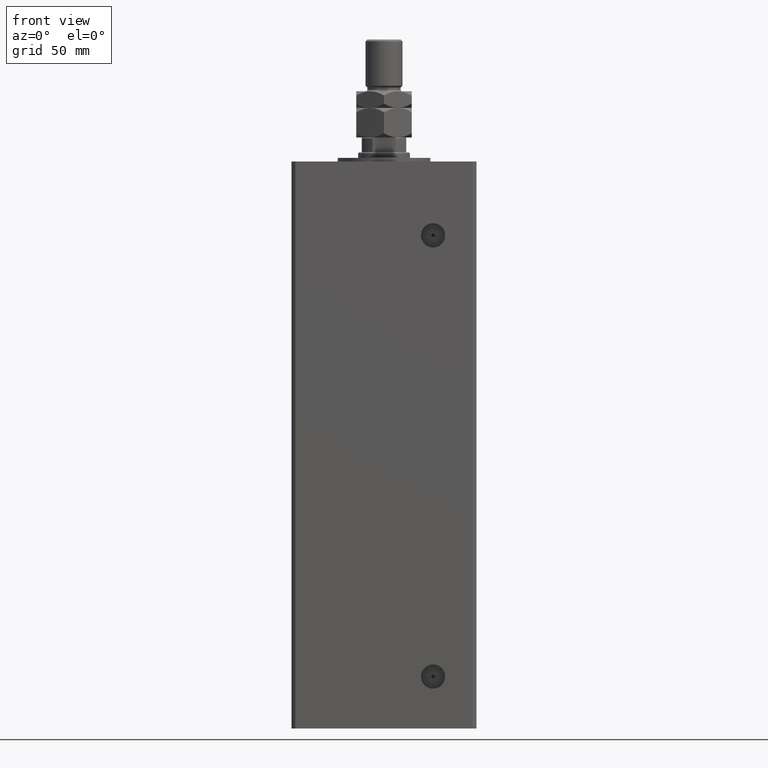
[diagram: clean part render]
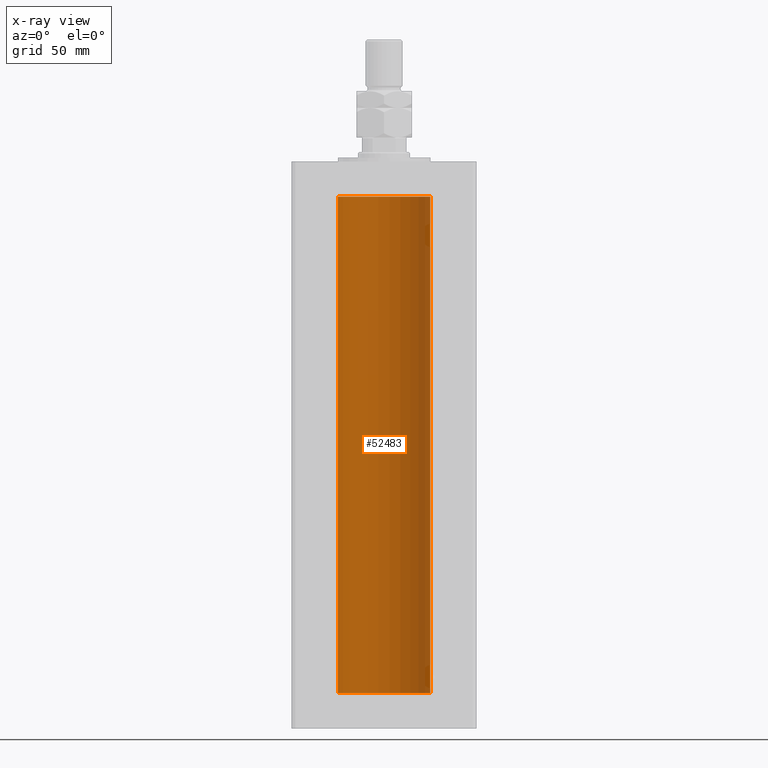
[diagram: x-ray — body ghosted, one internal face saturated and labeled with its STEP entity id]
A machine part, front view, then the same camera in x-ray: the body is ghosted and one INTERNAL B-rep face — a face not visible from any outside direction — is saturated and labeled: STEP entity #52483.
In plain terms, the highlighted cylindrical surface (partial cylindrical patch) has radius 25 mm, axis along (-0, -0, -1).
Its self-contained STEP definition (entity closure, byte-faithful):
#92 = EDGE_CURVE ( 'NONE', #16930, #14964, #46585, .T. ) ;
#3552 = EDGE_CURVE ( 'NONE', #43017, #11023, #37867, .T. ) ;
#3713 = ORIENTED_EDGE ( 'NONE', *, *, #35043, .F. ) ;
#4745 = VECTOR ( 'NONE', #25867, 1000.000000000000000 ) ;
#9135 = DIRECTION ( 'NONE',  ( -0.000000000000000000, 0.000000000000000000, 1.000000000000000000 ) ) ;
#9549 = CARTESIAN_POINT ( 'NONE',  ( -25.00000000000000000, 0.000000000000000000, 268.5000000000000000 ) ) ;
#10500 = FACE_OUTER_BOUND ( 'NONE', #14019, .T. ) ;
#11023 = VERTEX_POINT ( 'NONE', #38722 ) ;
#13814 = ORIENTED_EDGE ( 'NONE', *, *, #92, .F. ) ;
#14019 = EDGE_LOOP ( 'NONE', ( #3713, #49092, #26672, #13814 ) ) ;
#14431 = AXIS2_PLACEMENT_3D ( 'NONE', #52352, #52618, #43910 ) ;
#14494 = CARTESIAN_POINT ( 'NONE',  ( 25.00000000000000000, 3.061616997868383043E-15, 268.5000000000000000 ) ) ;
#14964 = VERTEX_POINT ( 'NONE', #22835 ) ;
#16930 = VERTEX_POINT ( 'NONE', #26369 ) ;
#17580 = CARTESIAN_POINT ( 'NONE',  ( 0.000000000000000000, 0.000000000000000000, 268.5000000000000000 ) ) ;
#22835 = CARTESIAN_POINT ( 'NONE',  ( -25.00000000000000000, 0.000000000000000000, 0.000000000000000000 ) ) ;
#24238 = EDGE_CURVE ( 'NONE', #11023, #14964, #29403, .T. ) ;
#24918 = DIRECTION ( 'NONE',  ( 1.000000000000000000, 0.000000000000000000, 0.000000000000000000 ) ) ;
#25867 = DIRECTION ( 'NONE',  ( -0.000000000000000000, -0.000000000000000000, -1.000000000000000000 ) ) ;
#26369 = CARTESIAN_POINT ( 'NONE',  ( 25.00000000000000000, 3.061616997868383043E-15, 0.000000000000000000 ) ) ;
#26672 = ORIENTED_EDGE ( 'NONE', *, *, #24238, .T. ) ;
#29217 = AXIS2_PLACEMENT_3D ( 'NONE', #46365, #9135, #24918 ) ;
#29403 = LINE ( 'NONE', #9549, #4745 ) ;
#30891 = DIRECTION ( 'NONE',  ( -1.000000000000000000, 0.000000000000000000, 0.000000000000000000 ) ) ;
#31352 = DIRECTION ( 'NONE',  ( -0.000000000000000000, -0.000000000000000000, -1.000000000000000000 ) ) ;
#32310 = AXIS2_PLACEMENT_3D ( 'NONE', #17580, #50743, #30891 ) ;
#32892 = VECTOR ( 'NONE', #31352, 1000.000000000000000 ) ;
#34068 = CARTESIAN_POINT ( 'NONE',  ( 25.00000000000000000, 3.061616997868383043E-15, 268.5000000000000000 ) ) ;
#34627 = LINE ( 'NONE', #14494, #32892 ) ;
#35043 = EDGE_CURVE ( 'NONE', #43017, #16930, #34627, .T. ) ;
#37867 = CIRCLE ( 'NONE', #14431, 25.00000000000000000 ) ;
#38722 = CARTESIAN_POINT ( 'NONE',  ( -25.00000000000000000, 0.000000000000000000, 268.5000000000000000 ) ) ;
#43017 = VERTEX_POINT ( 'NONE', #34068 ) ;
#43651 = CYLINDRICAL_SURFACE ( 'NONE', #32310, 25.00000000000000000 ) ;
#43910 = DIRECTION ( 'NONE',  ( 1.000000000000000000, 0.000000000000000000, 0.000000000000000000 ) ) ;
#46365 = CARTESIAN_POINT ( 'NONE',  ( 0.000000000000000000, 0.000000000000000000, 0.000000000000000000 ) ) ;
#46585 = CIRCLE ( 'NONE', #29217, 25.00000000000000000 ) ;
#49092 = ORIENTED_EDGE ( 'NONE', *, *, #3552, .T. ) ;
#50743 = DIRECTION ( 'NONE',  ( -0.000000000000000000, -0.000000000000000000, -1.000000000000000000 ) ) ;
#52352 = CARTESIAN_POINT ( 'NONE',  ( 0.000000000000000000, 0.000000000000000000, 268.5000000000000000 ) ) ;
#52483 = ADVANCED_FACE ( 'NONE', ( #10500 ), #43651, .F. ) ;
#52618 = DIRECTION ( 'NONE',  ( -0.000000000000000000, 0.000000000000000000, 1.000000000000000000 ) ) ;